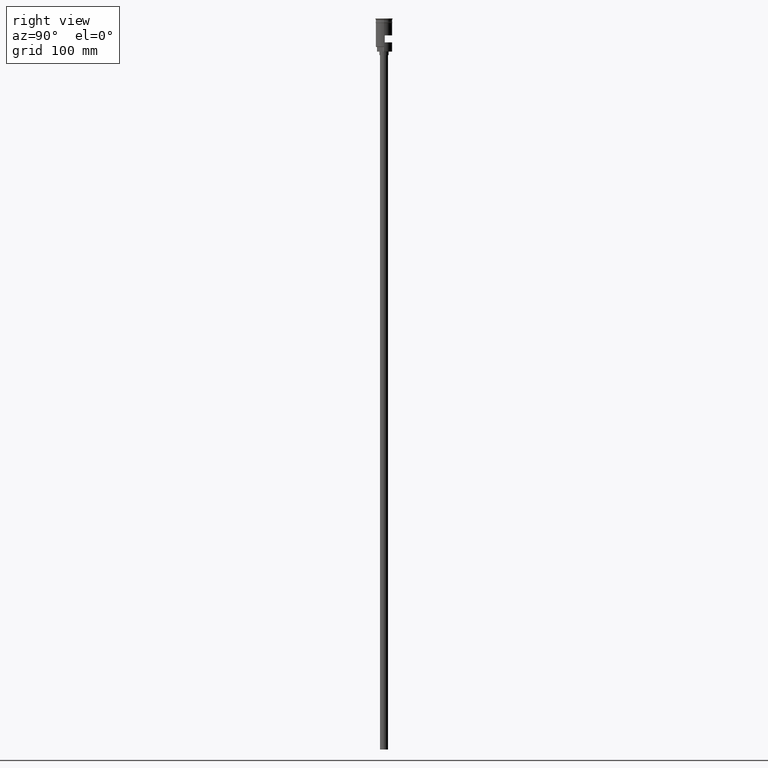
[diagram: clean part render]
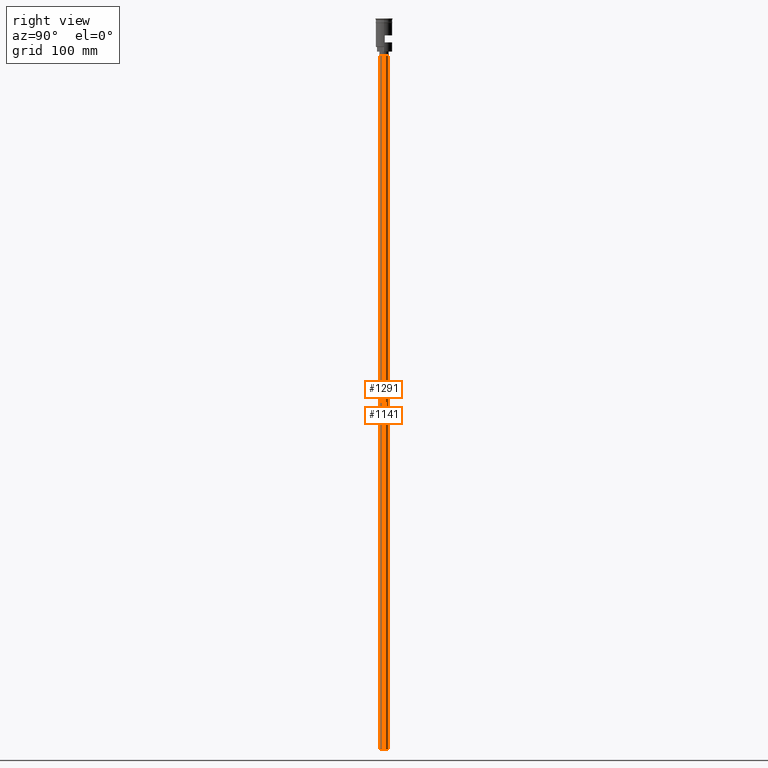
[diagram: same view with one multi-face feature highlighted, each face labeled with its STEP entity id]
A machine part, right view. The highlighted faces form ONE feature: a constant-radius fillet chain: 2 tangent blend faces with common blend radius 3.5 mm. The faces share edges in the B-rep.
Their STEP definitions:
[1] entity #1141 (Cylinder):
#3 = CARTESIAN_POINT ( 'NONE',  ( -3.500000000000000444, 4.286263797015737088E-16, -628.5000000000000000 ) ) ;
#13 = VERTEX_POINT ( 'NONE', #573 ) ;
#32 = LINE ( 'NONE', #290, #175 ) ;
#35 = VERTEX_POINT ( 'NONE', #915 ) ;
#59 = ORIENTED_EDGE ( 'NONE', *, *, #543, .T. ) ;
#115 = FACE_OUTER_BOUND ( 'NONE', #1445, .T. ) ;
#175 = VECTOR ( 'NONE', #524, 1000.000000000000000 ) ;
#222 = CARTESIAN_POINT ( 'NONE',  ( 0.000000000000000000, 0.000000000000000000, -628.5000000000000000 ) ) ;
#253 = DIRECTION ( 'NONE',  ( -0.000000000000000000, -0.000000000000000000, 1.000000000000000000 ) ) ;
#290 = CARTESIAN_POINT ( 'NONE',  ( 3.500000000000000444, 0.000000000000000000, -628.5000000000000000 ) ) ;
#298 = ORIENTED_EDGE ( 'NONE', *, *, #534, .F. ) ;
#350 = EDGE_CURVE ( 'NONE', #35, #701, #32, .T. ) ;
#389 = ORIENTED_EDGE ( 'NONE', *, *, #1117, .T. ) ;
#468 = DIRECTION ( 'NONE',  ( -1.000000000000000000, 0.000000000000000000, 0.000000000000000000 ) ) ;
#496 = VECTOR ( 'NONE', #253, 1000.000000000000000 ) ;
#524 = DIRECTION ( 'NONE',  ( -0.000000000000000000, -0.000000000000000000, 1.000000000000000000 ) ) ;
#534 = EDGE_CURVE ( 'NONE', #13, #35, #821, .T. ) ;
#543 = EDGE_CURVE ( 'NONE', #935, #701, #1319, .T. ) ;
#573 = CARTESIAN_POINT ( 'NONE',  ( -3.500000000000000444, 4.286263797015737088E-16, -628.5000000000000000 ) ) ;
#588 = DIRECTION ( 'NONE',  ( 0.000000000000000000, 0.000000000000000000, -1.000000000000000000 ) ) ;
#603 = DIRECTION ( 'NONE',  ( -1.000000000000000000, 0.000000000000000000, 0.000000000000000000 ) ) ;
#613 = AXIS2_PLACEMENT_3D ( 'NONE', #1119, #1504, #1089 ) ;
#687 = AXIS2_PLACEMENT_3D ( 'NONE', #222, #588, #603 ) ;
#701 = VERTEX_POINT ( 'NONE', #887 ) ;
#821 = CIRCLE ( 'NONE', #687, 3.500000000000000444 ) ;
#832 = ORIENTED_EDGE ( 'NONE', *, *, #350, .F. ) ;
#887 = CARTESIAN_POINT ( 'NONE',  ( 3.500000000000000444, 0.000000000000000000, -31.50000000000000000 ) ) ;
#915 = CARTESIAN_POINT ( 'NONE',  ( 3.500000000000000444, 0.000000000000000000, -628.5000000000000000 ) ) ;
#935 = VERTEX_POINT ( 'NONE', #1132 ) ;
#1089 = DIRECTION ( 'NONE',  ( 1.000000000000000000, 0.000000000000000000, 0.000000000000000000 ) ) ;
#1117 = EDGE_CURVE ( 'NONE', #13, #935, #1224, .T. ) ;
#1119 = CARTESIAN_POINT ( 'NONE',  ( 0.000000000000000000, 0.000000000000000000, -628.5000000000000000 ) ) ;
#1132 = CARTESIAN_POINT ( 'NONE',  ( -3.500000000000000444, 4.286263797015737088E-16, -31.50000000000000000 ) ) ;
#1141 = ADVANCED_FACE ( 'NONE', ( #115 ), #1494, .T. ) ;
#1208 = DIRECTION ( 'NONE',  ( 0.000000000000000000, 0.000000000000000000, -1.000000000000000000 ) ) ;
#1224 = LINE ( 'NONE', #3, #496 ) ;
#1319 = CIRCLE ( 'NONE', #1579, 3.500000000000000444 ) ;
#1445 = EDGE_LOOP ( 'NONE', ( #298, #389, #59, #832 ) ) ;
#1467 = CARTESIAN_POINT ( 'NONE',  ( 0.000000000000000000, 0.000000000000000000, -31.50000000000000000 ) ) ;
#1494 = CYLINDRICAL_SURFACE ( 'NONE', #613, 3.500000000000000444 ) ;
#1504 = DIRECTION ( 'NONE',  ( -0.000000000000000000, -0.000000000000000000, 1.000000000000000000 ) ) ;
#1579 = AXIS2_PLACEMENT_3D ( 'NONE', #1467, #1208, #468 ) ;
[2] entity #1291 (Cylinder):
#3 = CARTESIAN_POINT ( 'NONE',  ( -3.500000000000000444, 4.286263797015737088E-16, -628.5000000000000000 ) ) ;
#13 = VERTEX_POINT ( 'NONE', #573 ) ;
#32 = LINE ( 'NONE', #290, #175 ) ;
#35 = VERTEX_POINT ( 'NONE', #915 ) ;
#145 = DIRECTION ( 'NONE',  ( -0.000000000000000000, -0.000000000000000000, 1.000000000000000000 ) ) ;
#172 = CYLINDRICAL_SURFACE ( 'NONE', #791, 3.500000000000000444 ) ;
#175 = VECTOR ( 'NONE', #524, 1000.000000000000000 ) ;
#253 = DIRECTION ( 'NONE',  ( -0.000000000000000000, -0.000000000000000000, 1.000000000000000000 ) ) ;
#290 = CARTESIAN_POINT ( 'NONE',  ( 3.500000000000000444, 0.000000000000000000, -628.5000000000000000 ) ) ;
#350 = EDGE_CURVE ( 'NONE', #35, #701, #32, .T. ) ;
#388 = AXIS2_PLACEMENT_3D ( 'NONE', #1286, #1539, #1185 ) ;
#398 = EDGE_CURVE ( 'NONE', #701, #935, #742, .T. ) ;
#423 = ORIENTED_EDGE ( 'NONE', *, *, #1117, .F. ) ;
#494 = AXIS2_PLACEMENT_3D ( 'NONE', #1071, #1329, #955 ) ;
#496 = VECTOR ( 'NONE', #253, 1000.000000000000000 ) ;
#522 = FACE_OUTER_BOUND ( 'NONE', #1257, .T. ) ;
#524 = DIRECTION ( 'NONE',  ( -0.000000000000000000, -0.000000000000000000, 1.000000000000000000 ) ) ;
#573 = CARTESIAN_POINT ( 'NONE',  ( -3.500000000000000444, 4.286263797015737088E-16, -628.5000000000000000 ) ) ;
#694 = ORIENTED_EDGE ( 'NONE', *, *, #1054, .F. ) ;
#701 = VERTEX_POINT ( 'NONE', #887 ) ;
#719 = CIRCLE ( 'NONE', #494, 3.500000000000000444 ) ;
#742 = CIRCLE ( 'NONE', #388, 3.500000000000000444 ) ;
#791 = AXIS2_PLACEMENT_3D ( 'NONE', #1284, #145, #1148 ) ;
#887 = CARTESIAN_POINT ( 'NONE',  ( 3.500000000000000444, 0.000000000000000000, -31.50000000000000000 ) ) ;
#915 = CARTESIAN_POINT ( 'NONE',  ( 3.500000000000000444, 0.000000000000000000, -628.5000000000000000 ) ) ;
#935 = VERTEX_POINT ( 'NONE', #1132 ) ;
#955 = DIRECTION ( 'NONE',  ( -1.000000000000000000, 0.000000000000000000, 0.000000000000000000 ) ) ;
#1054 = EDGE_CURVE ( 'NONE', #35, #13, #719, .T. ) ;
#1071 = CARTESIAN_POINT ( 'NONE',  ( 0.000000000000000000, 0.000000000000000000, -628.5000000000000000 ) ) ;
#1117 = EDGE_CURVE ( 'NONE', #13, #935, #1224, .T. ) ;
#1132 = CARTESIAN_POINT ( 'NONE',  ( -3.500000000000000444, 4.286263797015737088E-16, -31.50000000000000000 ) ) ;
#1148 = DIRECTION ( 'NONE',  ( 1.000000000000000000, 0.000000000000000000, 0.000000000000000000 ) ) ;
#1185 = DIRECTION ( 'NONE',  ( -1.000000000000000000, 0.000000000000000000, 0.000000000000000000 ) ) ;
#1224 = LINE ( 'NONE', #3, #496 ) ;
#1257 = EDGE_LOOP ( 'NONE', ( #423, #694, #1393, #1510 ) ) ;
#1284 = CARTESIAN_POINT ( 'NONE',  ( 0.000000000000000000, 0.000000000000000000, -628.5000000000000000 ) ) ;
#1286 = CARTESIAN_POINT ( 'NONE',  ( 0.000000000000000000, 0.000000000000000000, -31.50000000000000000 ) ) ;
#1291 = ADVANCED_FACE ( 'NONE', ( #522 ), #172, .T. ) ;
#1329 = DIRECTION ( 'NONE',  ( 0.000000000000000000, 0.000000000000000000, -1.000000000000000000 ) ) ;
#1393 = ORIENTED_EDGE ( 'NONE', *, *, #350, .T. ) ;
#1510 = ORIENTED_EDGE ( 'NONE', *, *, #398, .T. ) ;
#1539 = DIRECTION ( 'NONE',  ( 0.000000000000000000, 0.000000000000000000, -1.000000000000000000 ) ) ;